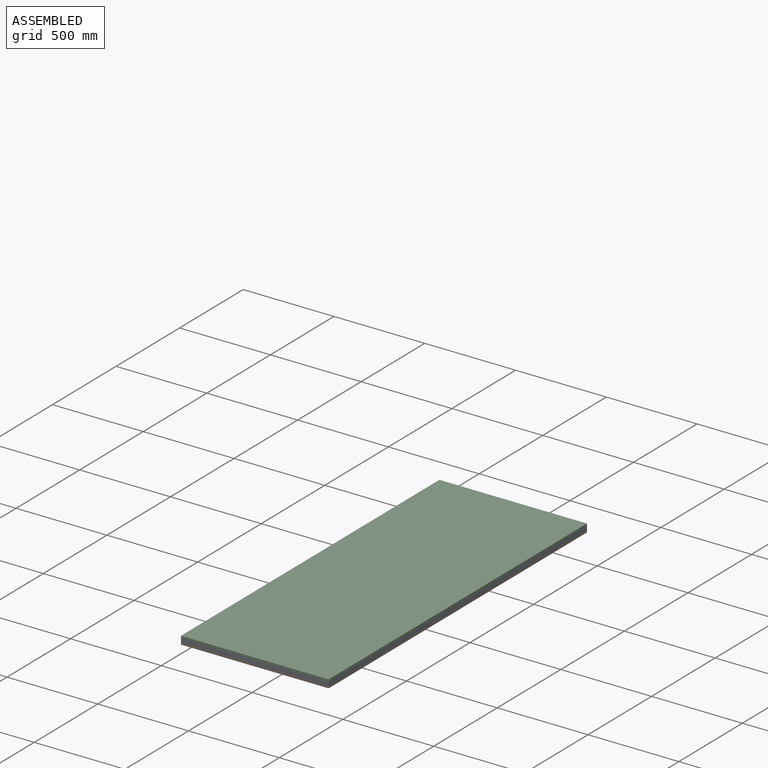
[diagram: assembled view]
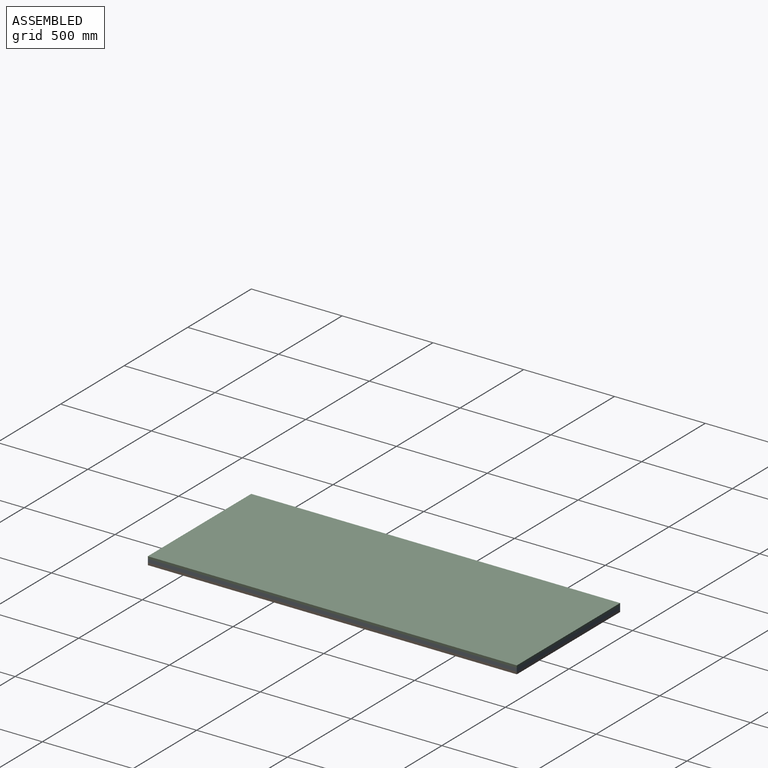
[diagram: assembled view, second angle]
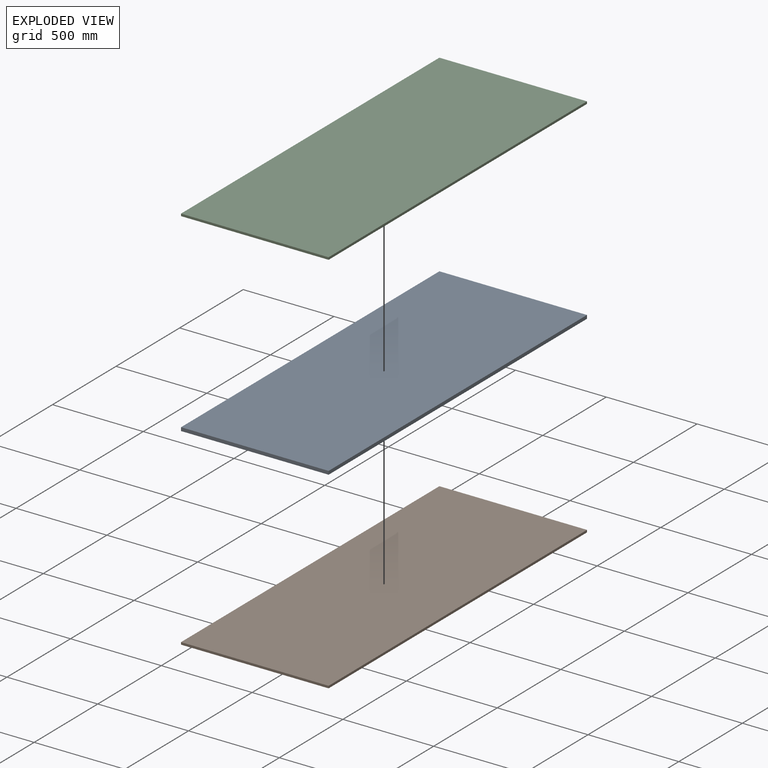
[diagram: exploded view]
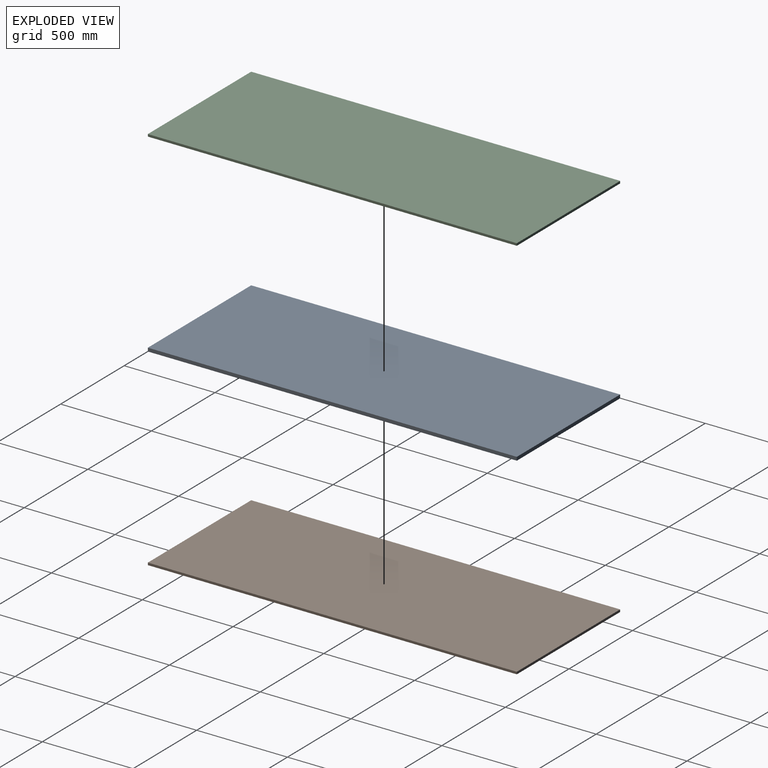
[diagram: exploded view, second angle]
ASSEMBLY  parts=3 mates=2
PART A: 6 faces, bbox 812.8x2032x19.1 mm
  f0: plane 2032x19.05mm, normal (-1,0,0), area 38709.6mm2, adj f1,f3,f4,f5
  f1: plane 812.8x19.05mm, normal (0,-1,0), area 15483.8mm2, adj f0,f2,f4,f5
  f2: plane 2032x19.05mm, normal (1,0,0), area 38709.6mm2, adj f1,f3,f4,f5
  f3: plane 812.8x19.05mm, normal (0,1,0), area 15483.8mm2, adj f0,f2,f4,f5
  f4: plane 2032x812.8mm, normal (0,0,1), area 1651609.6mm2, adj f0,f1,f2,f3
  f5: plane 2032x812.8mm, normal (0,0,-1), area 1651609.6mm2, adj f0,f1,f2,f3
PART B: 6 faces, bbox 812.8x2032x12.7 mm
  f0: plane 2032x12.7mm, normal (-1,0,0), area 25806.4mm2, adj f1,f3,f4,f5
  f1: plane 812.8x12.7mm, normal (0,-1,0), area 10322.6mm2, adj f0,f2,f4,f5
  f2: plane 2032x12.7mm, normal (1,0,0), area 25806.4mm2, adj f1,f3,f4,f5
  f3: plane 812.8x12.7mm, normal (0,1,0), area 10322.6mm2, adj f0,f2,f4,f5
  f4: plane 2032x812.8mm, normal (0,0,1), area 1651609.6mm2, adj f0,f1,f2,f3
  f5: plane 2032x812.8mm, normal (0,0,-1), area 1651609.6mm2, adj f0,f1,f2,f3
PART C: same geometry as B
PLACE A t=(-2880.03,-1016,-127.22)mm
PLACE B t=(-2880.03,-1016,-139.92)mm
PLACE C t=(-2880.03,-1016,-108.17)mm
MATE pin_slot B.f4 <-> A.f5  axis (0,0,1) through (-2880.03,1016,-127.22)mm
MATE pin_slot C.f5 <-> A.f4  axis (0,0,-1) through (-2880.03,1016,-108.17)mm
